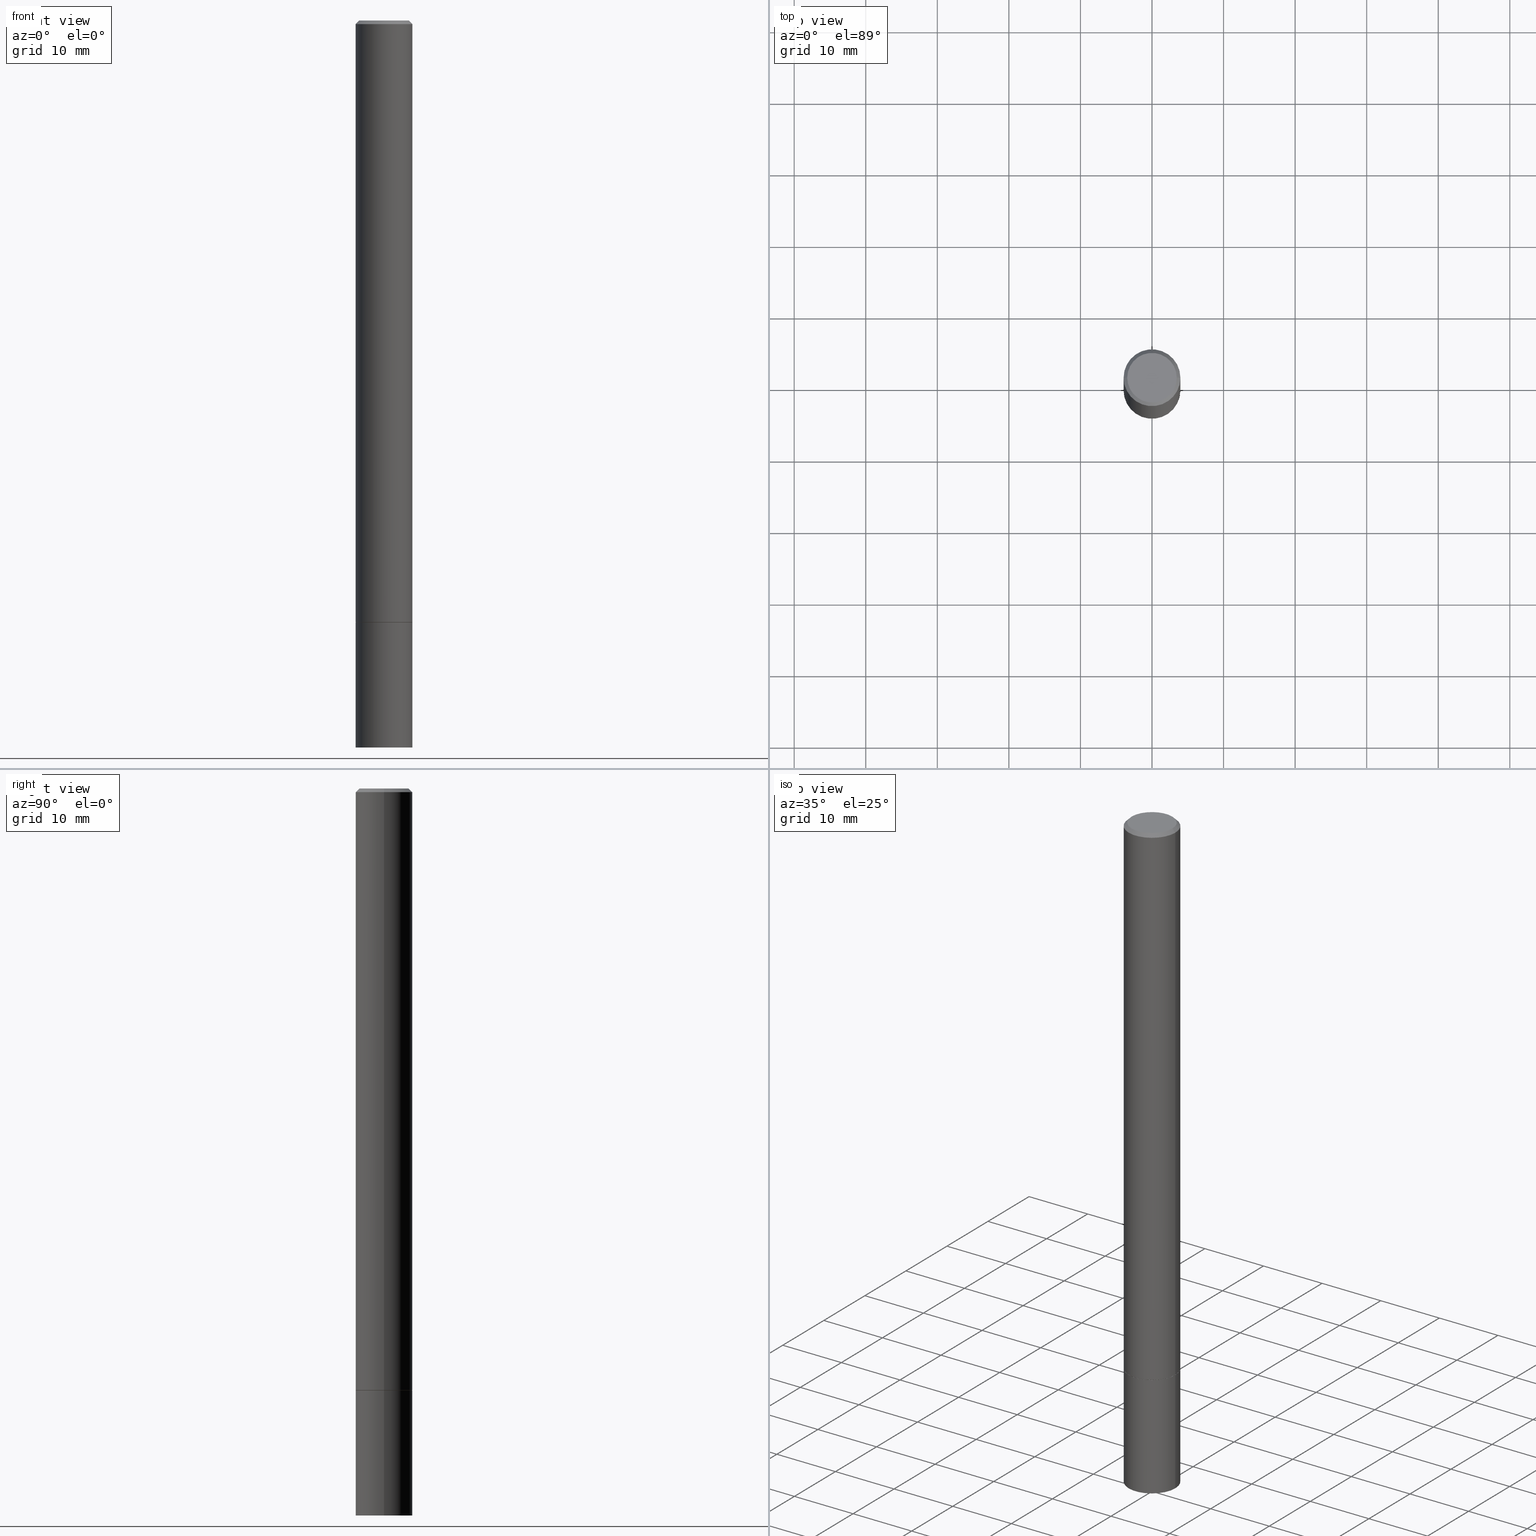
[diagram: canonical four-view strip — front | top / right | iso, engineering-drawing reading convention]
A machine part, canonical four-view strip (front | top / right | iso — engineering-drawing reading convention). The complete STEP part file that produces these views, byte-faithful:
ISO-10303-21;
HEADER;
FILE_DESCRIPTION (( 'STEP AP203' ),
    '1' );
FILE_NAME ('32283.STEP',
    '2024-02-27T15:00:26',
    ( '' ),
    ( '' ),
    'SwSTEP 2.0',
    'SolidWorks 2023',
    '' );
FILE_SCHEMA (( 'CONFIG_CONTROL_DESIGN' ));
ENDSEC;

DATA;
#1 = VERTEX_POINT ( 'NONE', #352 ) ;
#2 = DIRECTION ( 'NONE',  ( -2.445468806185136597E-29, 3.491481338843145583E-15, 1.000000000000000000 ) ) ;
#3 = CARTESIAN_POINT ( 'NONE',  ( -0.1362499999999995937, 9.863434782231822541E-16, -6.775751096333120265E-30 ) ) ;
#4 = ADVANCED_BREP_SHAPE_REPRESENTATION ( '32283', ( #135, #141, #24 ), #72 ) ;
#5 = DIRECTION ( 'NONE',  ( -2.445468806185136597E-29, 3.491481338843145583E-15, 1.000000000000000000 ) ) ;
#6 = APPROVAL_PERSON_ORGANIZATION ( #353, #291, #328 ) ;
#7 = DIMENSIONAL_EXPONENTS ( 1.000000000000000000, 0.000000000000000000, 0.000000000000000000, 0.000000000000000000, 0.000000000000000000, 0.000000000000000000, 0.000000000000000000 ) ;
#8 = CIRCLE ( 'NONE', #71, 0.1552499999999999991 ) ;
#9 = FACE_OUTER_BOUND ( 'NONE', #242, .T. ) ;
#10 = EDGE_CURVE ( 'NONE', #197, #290, #268, .T. ) ;
#11 = DIRECTION ( 'NONE',  ( 1.000000000000000000, -6.982962677686266711E-15, 4.876176775795935232E-29 ) ) ;
#12 = VERTEX_POINT ( 'NONE', #265 ) ;
#13 = DIRECTION ( 'NONE',  ( 1.000000000000000000, -6.982962677686262766E-15, 0.000000000000000000 ) ) ;
#14 = ORIENTED_EDGE ( 'NONE', *, *, #10, .F. ) ;
#15 = DATE_AND_TIME ( #208, #247 ) ;
#16 = VERTEX_POINT ( 'NONE', #98 ) ;
#17 = VECTOR ( 'NONE', #209, 39.37007874015748854 ) ;
#18 = PERSON_AND_ORGANIZATION ( #28, #201 ) ;
#19 = EDGE_CURVE ( 'NONE', #290, #197, #30, .T. ) ;
#20 = EDGE_LOOP ( 'NONE', ( #182, #165 ) ) ;
#21 = APPROVAL_ROLE ( '' ) ;
#22 = CARTESIAN_POINT ( 'NONE',  ( 0.1562500000000000000, -1.265138263129813571E-14, -3.311000000000000387 ) ) ;
#23 = DIRECTION ( 'NONE',  ( 1.000000000000000000, -6.982962677686266711E-15, 4.876176775795935232E-29 ) ) ;
#24 = AXIS2_PLACEMENT_3D ( 'NONE', #321, #332, #183 ) ;
#25 = AXIS2_PLACEMENT_3D ( 'NONE', #70, #107, #138 ) ;
#26 = CARTESIAN_POINT ( 'NONE',  ( 9.514286648347509994E-16, 0.1362499999999995937, -4.757143324173772746E-16 ) ) ;
#27 = DIRECTION ( 'NONE',  ( -2.445468806185136877E-29, 3.491481338843145188E-15, 1.000000000000000000 ) ) ;
#28 = PERSON ( 'UNSPECIFIED', 'UNSPECIFIED', 'UNSPECIFIED', ('UNSPECIFIED'), ('UNSPECIFIED'), ('UNSPECIFIED') ) ;
#29 = DIRECTION ( 'NONE',  ( -2.445468806185136597E-29, 3.491481338843145583E-15, 1.000000000000000000 ) ) ;
#30 = CIRCLE ( 'NONE', #240, 0.1362499999999995937 ) ;
#31 = ORIENTED_EDGE ( 'NONE', *, *, #300, .T. ) ;
#32 = ORIENTED_EDGE ( 'NONE', *, *, #75, .F. ) ;
#33 = CARTESIAN_POINT ( 'NONE',  ( 4.890937612370278413E-31, -6.982962677686297772E-17, -0.02000000000000002123 ) ) ;
#34 = LINE ( 'NONE', #199, #232 ) ;
#35 = DIRECTION ( 'NONE',  ( -2.445468806185136877E-29, 3.491481338843145188E-15, 1.000000000000000000 ) ) ;
#36 = DIRECTION ( 'NONE',  ( 1.000000000000000000, -6.982962677686262766E-15, 0.000000000000000000 ) ) ;
#37 = DIRECTION ( 'NONE',  ( 1.000000000000000000, -6.982962677686266711E-15, 4.876176775795936353E-29 ) ) ;
#38 = LOCAL_TIME ( 10, 0, 26.00000000000000000, #125 ) ;
#39 = CIRCLE ( 'NONE', #193, 0.1562500000000000000 ) ;
#40 = CARTESIAN_POINT ( 'NONE',  ( -0.1562499999999995837, 1.021258291611613509E-15, -0.02000000000000002123 ) ) ;
#41 = DIRECTION ( 'NONE',  ( 1.000000000000000000, -6.982962677686266711E-15, 4.876176775795935793E-29 ) ) ;
#42 = PERSON_AND_ORGANIZATION_ROLE ( 'creator' ) ;
#43 = ORIENTED_EDGE ( 'NONE', *, *, #342, .F. ) ;
#44 = COORDINATED_UNIVERSAL_TIME_OFFSET ( 5, 0, .BEHIND. ) ;
#45 = ORIENTED_EDGE ( 'NONE', *, *, #256, .T. ) ;
#46 = VECTOR ( 'NONE', #222, 39.37007874015748854 ) ;
#47 = CARTESIAN_POINT ( 'NONE',  ( 8.099392686085171054E-29, -1.156378619424849718E-14, -3.311999999999999389 ) ) ;
#48 = CARTESIAN_POINT ( 'NONE',  ( 8.099392686085171054E-29, -1.156378619424849718E-14, -3.311999999999999389 ) ) ;
#49 = CARTESIAN_POINT ( 'NONE',  ( 4.890937612370278413E-31, -6.982962677686297772E-17, -0.02000000000000002123 ) ) ;
#50 = CLOSED_SHELL ( 'NONE', ( #308, #145, #355, #284 ) ) ;
#51 = CARTESIAN_POINT ( 'NONE',  ( 0.1562500000000000000, -1.091087918388479174E-15, 7.619026212181150377E-30 ) ) ;
#52 = LINE ( 'NONE', #220, #46 ) ;
#53 = APPROVAL_PERSON_ORGANIZATION ( #18, #191, #272 ) ;
#54 = CYLINDRICAL_SURFACE ( 'NONE', #114, 0.1562499999999998057 ) ;
#55 = ORIENTED_EDGE ( 'NONE', *, *, #256, .F. ) ;
#56 = DIRECTION ( 'NONE',  ( -2.445468806185136597E-29, 3.491481338843145583E-15, 1.000000000000000000 ) ) ;
#57 = CC_DESIGN_SECURITY_CLASSIFICATION ( #307, ( #230 ) ) ;
#58 = ORIENTED_EDGE ( 'NONE', *, *, #81, .T. ) ;
#59 = CARTESIAN_POINT ( 'NONE',  ( 8.099392686085172175E-29, -1.156378619424849876E-14, -3.312000000000000277 ) ) ;
#60 = PLANE ( 'NONE',  #329 ) ;
#61 = CC_DESIGN_PERSON_AND_ORGANIZATION_ASSIGNMENT ( #130, #296, ( #230 ) ) ;
#62 = EDGE_LOOP ( 'NONE', ( #67, #180, #282, #287 ) ) ;
#63 = DIRECTION ( 'NONE',  ( 1.000000000000000000, -6.982962677686268288E-15, 0.000000000000000000 ) ) ;
#64 = AXIS2_PLACEMENT_3D ( 'NONE', #302, #361, #334 ) ;
#65 = EDGE_LOOP ( 'NONE', ( #115, #311 ) ) ;
#66 = PERSON_AND_ORGANIZATION ( #28, #201 ) ;
#67 = ORIENTED_EDGE ( 'NONE', *, *, #261, .F. ) ;
#68 = CALENDAR_DATE ( 2024, 27, 2 ) ;
#69 = VERTEX_POINT ( 'NONE', #319 ) ;
#70 = CARTESIAN_POINT ( 'NONE',  ( 4.890937612370278413E-31, -6.982962677686297772E-17, -0.02000000000000002123 ) ) ;
#71 = AXIS2_PLACEMENT_3D ( 'NONE', #48, #78, #134 ) ;
#72 =( GEOMETRIC_REPRESENTATION_CONTEXT ( 3 ) GLOBAL_UNCERTAINTY_ASSIGNED_CONTEXT ( ( #73 ) ) GLOBAL_UNIT_ASSIGNED_CONTEXT ( ( #286, #116, #259 ) ) REPRESENTATION_CONTEXT ( 'NONE', 'WORKASPACE' ) );
#73 = UNCERTAINTY_MEASURE_WITH_UNIT (LENGTH_MEASURE( 1.000000000000000082E-05 ), #286, 'distance_accuracy_value', 'NONE');
#74 = APPROVAL_STATUS ( 'not_yet_approved' ) ;
#75 = EDGE_CURVE ( 'NONE', #290, #184, #354, .T. ) ;
#76 = LINE ( 'NONE', #51, #295 ) ;
#77 = PERSON_AND_ORGANIZATION ( #28, #201 ) ;
#78 = DIRECTION ( 'NONE',  ( -2.445468806185136597E-29, 3.491481338843145583E-15, 1.000000000000000000 ) ) ;
#79 = FACE_OUTER_BOUND ( 'NONE', #234, .T. ) ;
#80 = CARTESIAN_POINT ( 'NONE',  ( -0.1562500000000000000, 1.110223024625156540E-15, -7.685836078523291160E-30 ) ) ;
#81 = EDGE_CURVE ( 'NONE', #169, #155, #213, .T. ) ;
#82 = CIRCLE ( 'NONE', #364, 0.1562500000000000000 ) ;
#83 = CONICAL_SURFACE ( 'NONE', #196, 0.1552499999999999991, 0.7853981633978239785 ) ;
#84 = DIRECTION ( 'NONE',  ( -1.000000000000000000, 6.982962677686265922E-15, -4.876176775795935793E-29 ) ) ;
#85 = CARTESIAN_POINT ( 'NONE',  ( 8.096947217278987693E-29, -1.156029471290965575E-14, -3.311000000000000387 ) ) ;
#86 = AXIS2_PLACEMENT_3D ( 'NONE', #179, #203, #63 ) ;
#87 = ORIENTED_EDGE ( 'NONE', *, *, #300, .F. ) ;
#88 = FACE_OUTER_BOUND ( 'NONE', #280, .T. ) ;
#89 = CARTESIAN_POINT ( 'NONE',  ( 0.1552499999999999991, -1.264789114995929113E-14, -3.311999999999999389 ) ) ;
#90 = CARTESIAN_POINT ( 'NONE',  ( -0.1552499999999999991, -1.045537014263272161E-14, -3.311999999999999389 ) ) ;
#91 = ORIENTED_EDGE ( 'NONE', *, *, #195, .T. ) ;
#92 = MECHANICAL_CONTEXT ( 'NONE', #207, 'mechanical' ) ;
#93 = CC_DESIGN_PERSON_AND_ORGANIZATION_ASSIGNMENT ( #97, #99, ( #307 ) ) ;
#94 = DIRECTION ( 'NONE',  ( 1.000000000000000000, -6.982962677686266711E-15, 4.876176775795935793E-29 ) ) ;
#95 = DATE_AND_TIME ( #358, #214 ) ;
#96 = CARTESIAN_POINT ( 'NONE',  ( 0.000000000000000000, 0.000000000000000000, 0.000000000000000000 ) ) ;
#97 = PERSON_AND_ORGANIZATION ( #28, #201 ) ;
#98 = CARTESIAN_POINT ( 'NONE',  ( 0.1562500000000000000, -1.265487411263697714E-14, -3.312000000000000277 ) ) ;
#99 = PERSON_AND_ORGANIZATION_ROLE ( 'classification_officer' ) ;
#100 = CARTESIAN_POINT ( 'NONE',  ( 0.000000000000000000, 0.000000000000000000, 0.000000000000000000 ) ) ;
#101 = LOCAL_TIME ( 10, 0, 26.00000000000000000, #210 ) ;
#102 = APPROVAL_DATE_TIME ( #95, #366 ) ;
#103 = DIRECTION ( 'NONE',  ( 1.000000000000000000, -6.982962677686268288E-15, 0.000000000000000000 ) ) ;
#104 = DIRECTION ( 'NONE',  ( -2.445468806185136597E-29, 3.491481338843145583E-15, 1.000000000000000000 ) ) ;
#105 = DIRECTION ( 'NONE',  ( -2.445468806185136877E-29, 3.491481338843145188E-15, 1.000000000000000000 ) ) ;
#106 = EDGE_CURVE ( 'NONE', #16, #126, #288, .T. ) ;
#107 = DIRECTION ( 'NONE',  ( -2.445468806185136597E-29, 3.491481338843145583E-15, 1.000000000000000000 ) ) ;
#108 = APPLICATION_CONTEXT ( 'configuration controlled 3d designs of mechanical parts and assemblies' ) ;
#109 = PRODUCT_DEFINITION ( 'UNKNOWN', '', #230, #363 ) ;
#110 = VERTEX_POINT ( 'NONE', #146 ) ;
#111 = DIRECTION ( 'NONE',  ( 2.445468806185136597E-29, -3.491481338843145583E-15, -1.000000000000000000 ) ) ;
#112 = DIRECTION ( 'NONE',  ( -2.445468806185136597E-29, 3.491481338843145583E-15, 1.000000000000000000 ) ) ;
#113 = CC_DESIGN_PERSON_AND_ORGANIZATION_ASSIGNMENT ( #66, #42, ( #109 ) ) ;
#114 = AXIS2_PLACEMENT_3D ( 'NONE', #313, #56, #11 ) ;
#115 = ORIENTED_EDGE ( 'NONE', *, *, #106, .T. ) ;
#116 =( NAMED_UNIT ( * ) PLANE_ANGLE_UNIT ( ) SI_UNIT ( $, .RADIAN. ) );
#117 = ORIENTED_EDGE ( 'NONE', *, *, #195, .F. ) ;
#118 = PERSON_AND_ORGANIZATION_ROLE ( 'design_owner' ) ;
#119 = ADVANCED_FACE ( 'NONE', ( #9 ), #83, .T. ) ;
#120 = ORIENTED_EDGE ( 'NONE', *, *, #241, .F. ) ;
#121 = CALENDAR_DATE ( 2024, 27, 2 ) ;
#122 = CLOSED_SHELL ( 'NONE', ( #347, #212, #274, #316, #330, #119, #176, #246 ) ) ;
#123 = AXIS2_PLACEMENT_3D ( 'NONE', #59, #174, #36 ) ;
#124 = ORIENTED_EDGE ( 'NONE', *, *, #360, .T. ) ;
#125 = COORDINATED_UNIVERSAL_TIME_OFFSET ( 5, 0, .BEHIND. ) ;
#126 = VERTEX_POINT ( 'NONE', #132 ) ;
#127 = APPROVAL_STATUS ( 'not_yet_approved' ) ;
#128 = LINE ( 'NONE', #80, #166 ) ;
#129 = EDGE_CURVE ( 'NONE', #126, #16, #39, .T. ) ;
#130 = PERSON_AND_ORGANIZATION ( #28, #201 ) ;
#131 = AXIS2_PLACEMENT_3D ( 'NONE', #85, #345, #236 ) ;
#132 = CARTESIAN_POINT ( 'NONE',  ( -0.1562500000000000000, -1.165463275018538400E-14, -3.312000000000000277 ) ) ;
#133 = VECTOR ( 'NONE', #285, 39.37007874015748854 ) ;
#134 = DIRECTION ( 'NONE',  ( 1.000000000000000000, -6.982962677686268288E-15, 0.000000000000000000 ) ) ;
#135 = MANIFOLD_SOLID_BREP ( 'Body-Move/Copy2[1]', #50 ) ;
#136 = EDGE_CURVE ( 'NONE', #184, #69, #223, .T. ) ;
#137 = PLANE ( 'NONE',  #339 ) ;
#138 = DIRECTION ( 'NONE',  ( 1.000000000000000000, -6.982962677686269077E-15, 0.000000000000000000 ) ) ;
#139 = AXIS2_PLACEMENT_3D ( 'NONE', #205, #112, #173 ) ;
#140 = EDGE_CURVE ( 'NONE', #340, #12, #52, .T. ) ;
#141 = MANIFOLD_SOLID_BREP ( 'Body-Move/Copy2[2]', #122 ) ;
#142 = AXIS2_PLACEMENT_3D ( 'NONE', #26, #301, #162 ) ;
#143 = FACE_OUTER_BOUND ( 'NONE', #65, .T. ) ;
#144 = CARTESIAN_POINT ( 'NONE',  ( 1.091087918388560032E-15, 0.1562499999999884259, -3.312000000000000721 ) ) ;
#145 = ADVANCED_FACE ( 'NONE', ( #306 ), #137, .T. ) ;
#146 = CARTESIAN_POINT ( 'NONE',  ( 0.1562500000000000000, -1.505701327376106229E-14, -4.000000000000000000 ) ) ;
#147 = DIRECTION ( 'NONE',  ( -1.000000000000000000, 6.982962677686267499E-15, 0.000000000000000000 ) ) ;
#148 = ORIENTED_EDGE ( 'NONE', *, *, #338, .T. ) ;
#149 = ORIENTED_EDGE ( 'NONE', *, *, #360, .F. ) ;
#150 = PERSON_AND_ORGANIZATION_ROLE ( 'creator' ) ;
#151 = ORIENTED_EDGE ( 'NONE', *, *, #106, .F. ) ;
#152 = AXIS2_PLACEMENT_3D ( 'NONE', #33, #111, #147 ) ;
#153 = AXIS2_PLACEMENT_3D ( 'NONE', #96, #323, #41 ) ;
#154 = CIRCLE ( 'NONE', #216, 0.1552499999999999991 ) ;
#155 = VERTEX_POINT ( 'NONE', #22 ) ;
#156 = DIRECTION ( 'NONE',  ( -2.445468806185136597E-29, 3.491481338843145583E-15, 1.000000000000000000 ) ) ;
#157 = DATE_AND_TIME ( #68, #101 ) ;
#158 = LINE ( 'NONE', #275, #215 ) ;
#159 = CALENDAR_DATE ( 2024, 27, 2 ) ;
#160 = CARTESIAN_POINT ( 'NONE',  ( 1.091087918388576795E-15, 0.1562499999999860389, -4.000000000000000888 ) ) ;
#161 = EDGE_CURVE ( 'NONE', #12, #184, #277, .T. ) ;
#162 = DIRECTION ( 'NONE',  ( -1.000000000000000000, 6.982962677686265922E-15, -4.876176775795935793E-29 ) ) ;
#163 = FACE_OUTER_BOUND ( 'NONE', #211, .T. ) ;
#164 = CC_DESIGN_APPROVAL ( #366, ( #307 ) ) ;
#165 = ORIENTED_EDGE ( 'NONE', *, *, #10, .T. ) ;
#166 = VECTOR ( 'NONE', #105, 39.37007874015748143 ) ;
#167 = CIRCLE ( 'NONE', #139, 0.1562500000000000000 ) ;
#168 = DIRECTION ( 'NONE',  ( 2.438088387897960049E-29, -3.491481338843145188E-15, -1.000000000000000000 ) ) ;
#169 = VERTEX_POINT ( 'NONE', #217 ) ;
#170 = APPROVAL_PERSON_ORGANIZATION ( #351, #366, #21 ) ;
#171 = CC_DESIGN_PERSON_AND_ORGANIZATION_ASSIGNMENT ( #77, #118, ( #224 ) ) ;
#172 = DIRECTION ( 'NONE',  ( -2.445468806185136597E-29, 3.491481338843145583E-15, 1.000000000000000000 ) ) ;
#173 = DIRECTION ( 'NONE',  ( 1.000000000000000000, -6.982962677686262766E-15, 0.000000000000000000 ) ) ;
#174 = DIRECTION ( 'NONE',  ( -2.445468806185136597E-29, 3.491481338843145583E-15, 1.000000000000000000 ) ) ;
#175 = CARTESIAN_POINT ( 'NONE',  ( 8.096947217278987693E-29, -1.156029471290965575E-14, -3.311000000000000387 ) ) ;
#176 = ADVANCED_FACE ( 'NONE', ( #304 ), #194, .F. ) ;
#177 = DIRECTION ( 'NONE',  ( -2.445468806185136597E-29, 3.491481338843145583E-15, 1.000000000000000000 ) ) ;
#178 = CONICAL_SURFACE ( 'NONE', #86, 0.1552499999999999991, 0.7853981633978239785 ) ;
#179 = CARTESIAN_POINT ( 'NONE',  ( 8.099392686085171054E-29, -1.156378619424849718E-14, -3.311999999999999389 ) ) ;
#180 = ORIENTED_EDGE ( 'NONE', *, *, #19, .F. ) ;
#181 = DATE_TIME_ROLE ( 'creation_date' ) ;
#182 = ORIENTED_EDGE ( 'NONE', *, *, #19, .T. ) ;
#183 = DIRECTION ( 'NONE',  ( 1.000000000000000000, 0.000000000000000000, 0.000000000000000000 ) ) ;
#184 = VERTEX_POINT ( 'NONE', #336 ) ;
#185 = EDGE_CURVE ( 'NONE', #1, #110, #231, .T. ) ;
#186 = PLANE ( 'NONE',  #142 ) ;
#187 = COORDINATED_UNIVERSAL_TIME_OFFSET ( 5, 0, .BEHIND. ) ;
#188 = DIRECTION ( 'NONE',  ( 1.000000000000000000, -6.982962677686269077E-15, 0.000000000000000000 ) ) ;
#189 = DATE_TIME_ROLE ( 'classification_date' ) ;
#190 = DIRECTION ( 'NONE',  ( -1.000000000000000000, 6.982962677686265922E-15, -4.876176775795935793E-29 ) ) ;
#191 = APPROVAL ( #127, 'UNSPECIFIED' ) ;
#192 = CYLINDRICAL_SURFACE ( 'NONE', #357, 0.1562500000000000000 ) ;
#193 = AXIS2_PLACEMENT_3D ( 'NONE', #325, #104, #273 ) ;
#194 = PLANE ( 'NONE',  #314 ) ;
#195 = EDGE_CURVE ( 'NONE', #1, #126, #128, .T. ) ;
#196 = AXIS2_PLACEMENT_3D ( 'NONE', #47, #156, #103 ) ;
#197 = VERTEX_POINT ( 'NONE', #245 ) ;
#198 = CC_DESIGN_DATE_AND_TIME_ASSIGNMENT ( #239, #189, ( #307 ) ) ;
#199 = CARTESIAN_POINT ( 'NONE',  ( 0.1562499999999998057, -1.091087918388477793E-15, 7.619026212181139167E-30 ) ) ;
#200 = ORIENTED_EDGE ( 'NONE', *, *, #241, .T. ) ;
#201 = ORGANIZATION ( 'UNSPECIFIED', 'UNSPECIFIED', '' ) ;
#202 = ORIENTED_EDGE ( 'NONE', *, *, #227, .F. ) ;
#203 = DIRECTION ( 'NONE',  ( -2.445468806185136597E-29, 3.491481338843145583E-15, 1.000000000000000000 ) ) ;
#204 = ORIENTED_EDGE ( 'NONE', *, *, #81, .F. ) ;
#205 = CARTESIAN_POINT ( 'NONE',  ( 9.781875224740546387E-29, -1.396592535537258233E-14, -4.000000000000000000 ) ) ;
#206 = ORIENTED_EDGE ( 'NONE', *, *, #342, .T. ) ;
#207 = APPLICATION_CONTEXT ( 'configuration controlled 3d designs of mechanical parts and assemblies' ) ;
#208 = CALENDAR_DATE ( 2024, 27, 2 ) ;
#209 = DIRECTION ( 'NONE',  ( -0.7071067811865469066, 2.468850131082251144E-15, -0.7071067811865479058 ) ) ;
#210 = COORDINATED_UNIVERSAL_TIME_OFFSET ( 5, 0, .BEHIND. ) ;
#211 = EDGE_LOOP ( 'NONE', ( #124, #348, #202, #87 ) ) ;
#212 = ADVANCED_FACE ( 'NONE', ( #163 ), #356, .T. ) ;
#213 = LINE ( 'NONE', #89, #133 ) ;
#214 = LOCAL_TIME ( 10, 0, 26.00000000000000000, #299 ) ;
#215 = VECTOR ( 'NONE', #248, 39.37007874015748854 ) ;
#216 = AXIS2_PLACEMENT_3D ( 'NONE', #233, #5, #258 ) ;
#217 = CARTESIAN_POINT ( 'NONE',  ( 0.1552499999999999991, -1.264789114995929113E-14, -3.311999999999999389 ) ) ;
#218 = DATE_AND_TIME ( #159, #38 ) ;
#219 = CC_DESIGN_PERSON_AND_ORGANIZATION_ASSIGNMENT ( #349, #150, ( #230 ) ) ;
#220 = CARTESIAN_POINT ( 'NONE',  ( -0.1552499999999999991, -1.046066859698094244E-14, -3.311999999999999389 ) ) ;
#221 = DIRECTION ( 'NONE',  ( -2.445468806185136597E-29, 3.491481338843145583E-15, 1.000000000000000000 ) ) ;
#222 = DIRECTION ( 'NONE',  ( -0.7071067811868130271, 7.493145998871311837E-15, 0.7071067811862817853 ) ) ;
#223 = CIRCLE ( 'NONE', #283, 0.1562499999999995837 ) ;
#224 = PRODUCT ( '32283', '32283', '', ( #92 ) ) ;
#225 = ORIENTED_EDGE ( 'NONE', *, *, #140, .T. ) ;
#226 = CONICAL_SURFACE ( 'NONE', #64, 0.1562499999999995837, 0.7853981633974476129 ) ;
#227 = EDGE_CURVE ( 'NONE', #69, #184, #253, .T. ) ;
#228 = ORIENTED_EDGE ( 'NONE', *, *, #161, .F. ) ;
#229 = FACE_OUTER_BOUND ( 'NONE', #346, .T. ) ;
#230 = PRODUCT_DEFINITION_FORMATION_WITH_SPECIFIED_SOURCE ( 'ANY', '', #224, .NOT_KNOWN. ) ;
#231 = CIRCLE ( 'NONE', #303, 0.1562500000000000000 ) ;
#232 = VECTOR ( 'NONE', #35, 39.37007874015748143 ) ;
#233 = CARTESIAN_POINT ( 'NONE',  ( 8.099392686085171054E-29, -1.156378619424849718E-14, -3.311999999999999389 ) ) ;
#234 = EDGE_LOOP ( 'NONE', ( #117, #260, #200, #271 ) ) ;
#235 = CC_DESIGN_DATE_AND_TIME_ASSIGNMENT ( #15, #181, ( #109 ) ) ;
#236 = DIRECTION ( 'NONE',  ( 1.000000000000000000, -6.982962677686262766E-15, 0.000000000000000000 ) ) ;
#237 = EDGE_LOOP ( 'NONE', ( #14, #267, #317, #32 ) ) ;
#238 = ORIENTED_EDGE ( 'NONE', *, *, #305, .T. ) ;
#239 = DATE_AND_TIME ( #121, #297 ) ;
#240 = AXIS2_PLACEMENT_3D ( 'NONE', #294, #177, #94 ) ;
#241 = EDGE_CURVE ( 'NONE', #110, #16, #76, .T. ) ;
#242 = EDGE_LOOP ( 'NONE', ( #315, #238, #58, #43 ) ) ;
#243 = APPROVAL_DATE_TIME ( #218, #191 ) ;
#244 = ORIENTED_EDGE ( 'NONE', *, *, #338, .F. ) ;
#245 = CARTESIAN_POINT ( 'NONE',  ( 0.1362499999999995937, -1.038262645562515166E-15, 6.957025900226675457E-30 ) ) ;
#246 = ADVANCED_FACE ( 'NONE', ( #252 ), #186, .F. ) ;
#247 = LOCAL_TIME ( 10, 0, 26.00000000000000000, #44 ) ;
#248 = DIRECTION ( 'NONE',  ( 0.7071067811865469066, -7.319954787623252890E-15, -0.7071067811865479058 ) ) ;
#249 = DIRECTION ( 'NONE',  ( -2.445468806185136597E-29, 3.491481338843145583E-15, 1.000000000000000000 ) ) ;
#250 = CARTESIAN_POINT ( 'NONE',  ( 9.781875224740546387E-29, -1.396592535537258233E-14, -4.000000000000000000 ) ) ;
#251 = CIRCLE ( 'NONE', #131, 0.1562500000000000000 ) ;
#252 = FACE_OUTER_BOUND ( 'NONE', #20, .T. ) ;
#253 = CIRCLE ( 'NONE', #25, 0.1562499999999995837 ) ;
#254 = CC_DESIGN_APPROVAL ( #291, ( #230 ) ) ;
#255 = PRODUCT_RELATED_PRODUCT_CATEGORY ( 'detail', '', ( #224 ) ) ;
#256 = EDGE_CURVE ( 'NONE', #169, #340, #8, .T. ) ;
#257 = FACE_OUTER_BOUND ( 'NONE', #62, .T. ) ;
#258 = DIRECTION ( 'NONE',  ( 1.000000000000000000, -6.982962677686268288E-15, 0.000000000000000000 ) ) ;
#259 =( NAMED_UNIT ( * ) SI_UNIT ( $, .STERADIAN. ) SOLID_ANGLE_UNIT ( ) );
#260 = ORIENTED_EDGE ( 'NONE', *, *, #185, .T. ) ;
#261 = EDGE_CURVE ( 'NONE', #197, #69, #158, .T. ) ;
#262 = CARTESIAN_POINT ( 'NONE',  ( 0.000000000000000000, 0.000000000000000000, 0.000000000000000000 ) ) ;
#263 = EDGE_LOOP ( 'NONE', ( #244, #344 ) ) ;
#264 = DIRECTION ( 'NONE',  ( 1.000000000000000000, -6.982962677686266711E-15, 4.876176775795936353E-29 ) ) ;
#265 = CARTESIAN_POINT ( 'NONE',  ( -0.1562500000000000000, -4.704839145218096672E-15, -3.311000000000000387 ) ) ;
#266 = SECURITY_CLASSIFICATION_LEVEL ( 'unclassified' ) ;
#267 = ORIENTED_EDGE ( 'NONE', *, *, #261, .T. ) ;
#268 = CIRCLE ( 'NONE', #153, 0.1362499999999995937 ) ;
#269 = APPLICATION_PROTOCOL_DEFINITION ( 'international standard', 'config_control_design', 1994, #108 ) ;
#270 = CONICAL_SURFACE ( 'NONE', #152, 0.1562499999999995837, 0.7853981633974476129 ) ;
#271 = ORIENTED_EDGE ( 'NONE', *, *, #129, .F. ) ;
#272 = APPROVAL_ROLE ( '' ) ;
#273 = DIRECTION ( 'NONE',  ( 1.000000000000000000, -6.982962677686262766E-15, 0.000000000000000000 ) ) ;
#274 = ADVANCED_FACE ( 'NONE', ( #359 ), #226, .T. ) ;
#275 = CARTESIAN_POINT ( 'NONE',  ( 0.1562499999999995837, -1.141782438928661949E-15, -0.02000000000000002123 ) ) ;
#276 = APPROVAL_STATUS ( 'not_yet_approved' ) ;
#277 = LINE ( 'NONE', #278, #327 ) ;
#278 = CARTESIAN_POINT ( 'NONE',  ( -0.1562499999999998057, 1.110223024625155160E-15, -7.685836078523279949E-30 ) ) ;
#279 = DIRECTION ( 'NONE',  ( 2.438088387897960049E-29, -3.491481338843145188E-15, -1.000000000000000000 ) ) ;
#280 = EDGE_LOOP ( 'NONE', ( #45, #225, #149, #204 ) ) ;
#281 = CARTESIAN_POINT ( 'NONE',  ( 0.000000000000000000, 0.000000000000000000, 0.000000000000000000 ) ) ;
#282 = ORIENTED_EDGE ( 'NONE', *, *, #75, .T. ) ;
#283 = AXIS2_PLACEMENT_3D ( 'NONE', #49, #221, #188 ) ;
#284 = ADVANCED_FACE ( 'NONE', ( #79 ), #192, .T. ) ;
#285 = DIRECTION ( 'NONE',  ( 0.7071067811868130271, -2.468850131085038979E-15, 0.7071067811862817853 ) ) ;
#286 =( CONVERSION_BASED_UNIT ( 'INCH', #343 ) LENGTH_UNIT ( ) NAMED_UNIT ( #7 ) );
#287 = ORIENTED_EDGE ( 'NONE', *, *, #136, .T. ) ;
#288 = CIRCLE ( 'NONE', #123, 0.1562500000000000000 ) ;
#289 =( LENGTH_UNIT ( ) NAMED_UNIT ( * ) SI_UNIT ( $, .METRE. ) );
#290 = VERTEX_POINT ( 'NONE', #3 ) ;
#291 = APPROVAL ( #74, 'UNSPECIFIED' ) ;
#292 = APPROVAL_DATE_TIME ( #157, #291 ) ;
#293 = EDGE_LOOP ( 'NONE', ( #55, #322 ) ) ;
#294 = CARTESIAN_POINT ( 'NONE',  ( 0.000000000000000000, 0.000000000000000000, 0.000000000000000000 ) ) ;
#295 = VECTOR ( 'NONE', #362, 39.37007874015748143 ) ;
#296 = PERSON_AND_ORGANIZATION_ROLE ( 'design_supplier' ) ;
#297 = LOCAL_TIME ( 10, 0, 26.00000000000000000, #187 ) ;
#298 = DIRECTION ( 'NONE',  ( 1.000000000000000000, -6.982962677686262766E-15, 0.000000000000000000 ) ) ;
#299 = COORDINATED_UNIVERSAL_TIME_OFFSET ( 5, 0, .BEHIND. ) ;
#300 = EDGE_CURVE ( 'NONE', #155, #69, #34, .T. ) ;
#301 = DIRECTION ( 'NONE',  ( 2.438088387897960049E-29, -3.491481338843145188E-15, -1.000000000000000000 ) ) ;
#302 = CARTESIAN_POINT ( 'NONE',  ( 4.890937612370278413E-31, -6.982962677686297772E-17, -0.02000000000000002123 ) ) ;
#303 = AXIS2_PLACEMENT_3D ( 'NONE', #250, #249, #298 ) ;
#304 = FACE_OUTER_BOUND ( 'NONE', #293, .T. ) ;
#305 = EDGE_CURVE ( 'NONE', #340, #169, #154, .T. ) ;
#306 = FACE_OUTER_BOUND ( 'NONE', #263, .T. ) ;
#307 = SECURITY_CLASSIFICATION ( '', '', #266 ) ;
#308 = ADVANCED_FACE ( 'NONE', ( #318 ), #310, .T. ) ;
#309 = AXIS2_PLACEMENT_3D ( 'NONE', #281, #2, #37 ) ;
#310 = CYLINDRICAL_SURFACE ( 'NONE', #309, 0.1562500000000000000 ) ;
#311 = ORIENTED_EDGE ( 'NONE', *, *, #129, .T. ) ;
#312 = PRODUCT_DEFINITION_SHAPE ( 'NONE', 'NONE',  #109 ) ;
#313 = CARTESIAN_POINT ( 'NONE',  ( 0.000000000000000000, 0.000000000000000000, 0.000000000000000000 ) ) ;
#314 = AXIS2_PLACEMENT_3D ( 'NONE', #331, #365, #333 ) ;
#315 = ORIENTED_EDGE ( 'NONE', *, *, #140, .F. ) ;
#316 = ADVANCED_FACE ( 'NONE', ( #257 ), #270, .T. ) ;
#317 = ORIENTED_EDGE ( 'NONE', *, *, #227, .T. ) ;
#318 = FACE_OUTER_BOUND ( 'NONE', #320, .T. ) ;
#319 = CARTESIAN_POINT ( 'NONE',  ( 0.1562499999999995837, -1.141782438928661949E-15, -0.02000000000000002123 ) ) ;
#320 = EDGE_LOOP ( 'NONE', ( #148, #91, #151, #120 ) ) ;
#321 = CARTESIAN_POINT ( 'NONE',  ( 0.000000000000000000, 0.000000000000000000, 0.000000000000000000 ) ) ;
#322 = ORIENTED_EDGE ( 'NONE', *, *, #305, .F. ) ;
#323 = DIRECTION ( 'NONE',  ( -2.445468806185136597E-29, 3.491481338843145583E-15, 1.000000000000000000 ) ) ;
#324 = SHAPE_DEFINITION_REPRESENTATION ( #312, #4 ) ;
#325 = CARTESIAN_POINT ( 'NONE',  ( 8.099392686085172175E-29, -1.156378619424849876E-14, -3.312000000000000277 ) ) ;
#326 = CC_DESIGN_APPROVAL ( #191, ( #109 ) ) ;
#327 = VECTOR ( 'NONE', #27, 39.37007874015748143 ) ;
#328 = APPROVAL_ROLE ( '' ) ;
#329 = AXIS2_PLACEMENT_3D ( 'NONE', #144, #168, #84 ) ;
#330 = ADVANCED_FACE ( 'NONE', ( #229 ), #54, .T. ) ;
#331 = CARTESIAN_POINT ( 'NONE',  ( 8.099392686085172175E-29, -1.156378619424849876E-14, -3.312000000000000277 ) ) ;
#332 = DIRECTION ( 'NONE',  ( 0.000000000000000000, 0.000000000000000000, 1.000000000000000000 ) ) ;
#333 = DIRECTION ( 'NONE',  ( 1.000000000000000000, -6.982962677686265922E-15, 4.876176775795935793E-29 ) ) ;
#334 = DIRECTION ( 'NONE',  ( -1.000000000000000000, 6.982962677686267499E-15, 0.000000000000000000 ) ) ;
#335 = AXIS2_PLACEMENT_3D ( 'NONE', #100, #29, #23 ) ;
#336 = CARTESIAN_POINT ( 'NONE',  ( -0.1562499999999995837, 1.021258291611613509E-15, -0.02000000000000002123 ) ) ;
#337 = APPLICATION_PROTOCOL_DEFINITION ( 'international standard', 'config_control_design', 1994, #207 ) ;
#338 = EDGE_CURVE ( 'NONE', #110, #1, #167, .T. ) ;
#339 = AXIS2_PLACEMENT_3D ( 'NONE', #160, #279, #190 ) ;
#340 = VERTEX_POINT ( 'NONE', #90 ) ;
#341 = DIRECTION ( 'NONE',  ( -2.445468806185136597E-29, 3.491481338843145583E-15, 1.000000000000000000 ) ) ;
#342 = EDGE_CURVE ( 'NONE', #12, #155, #251, .T. ) ;
#343 = LENGTH_MEASURE_WITH_UNIT ( LENGTH_MEASURE( 0.02539999999999999897 ), #289 );
#344 = ORIENTED_EDGE ( 'NONE', *, *, #185, .F. ) ;
#345 = DIRECTION ( 'NONE',  ( -2.445468806185136597E-29, 3.491481338843145583E-15, 1.000000000000000000 ) ) ;
#346 = EDGE_LOOP ( 'NONE', ( #228, #206, #31, #350 ) ) ;
#347 = ADVANCED_FACE ( 'NONE', ( #88 ), #178, .T. ) ;
#348 = ORIENTED_EDGE ( 'NONE', *, *, #161, .T. ) ;
#349 = PERSON_AND_ORGANIZATION ( #28, #201 ) ;
#350 = ORIENTED_EDGE ( 'NONE', *, *, #136, .F. ) ;
#351 = PERSON_AND_ORGANIZATION ( #28, #201 ) ;
#352 = CARTESIAN_POINT ( 'NONE',  ( -0.1562500000000000000, -1.165463275018538400E-14, -4.000000000000000000 ) ) ;
#353 = PERSON_AND_ORGANIZATION ( #28, #201 ) ;
#354 = LINE ( 'NONE', #40, #17 ) ;
#355 = ADVANCED_FACE ( 'NONE', ( #143 ), #60, .F. ) ;
#356 = CYLINDRICAL_SURFACE ( 'NONE', #335, 0.1562499999999998057 ) ;
#357 = AXIS2_PLACEMENT_3D ( 'NONE', #262, #341, #264 ) ;
#358 = CALENDAR_DATE ( 2024, 27, 2 ) ;
#359 = FACE_OUTER_BOUND ( 'NONE', #237, .T. ) ;
#360 = EDGE_CURVE ( 'NONE', #155, #12, #82, .T. ) ;
#361 = DIRECTION ( 'NONE',  ( 2.445468806185136597E-29, -3.491481338843145583E-15, -1.000000000000000000 ) ) ;
#362 = DIRECTION ( 'NONE',  ( -2.445468806185136877E-29, 3.491481338843145188E-15, 1.000000000000000000 ) ) ;
#363 = DESIGN_CONTEXT ( 'detailed design', #108, 'design' ) ;
#364 = AXIS2_PLACEMENT_3D ( 'NONE', #175, #172, #13 ) ;
#365 = DIRECTION ( 'NONE',  ( -2.438088387897960049E-29, 3.491481338843145188E-15, 1.000000000000000000 ) ) ;
#366 = APPROVAL ( #276, 'UNSPECIFIED' ) ;
ENDSEC;
END-ISO-10303-21;
